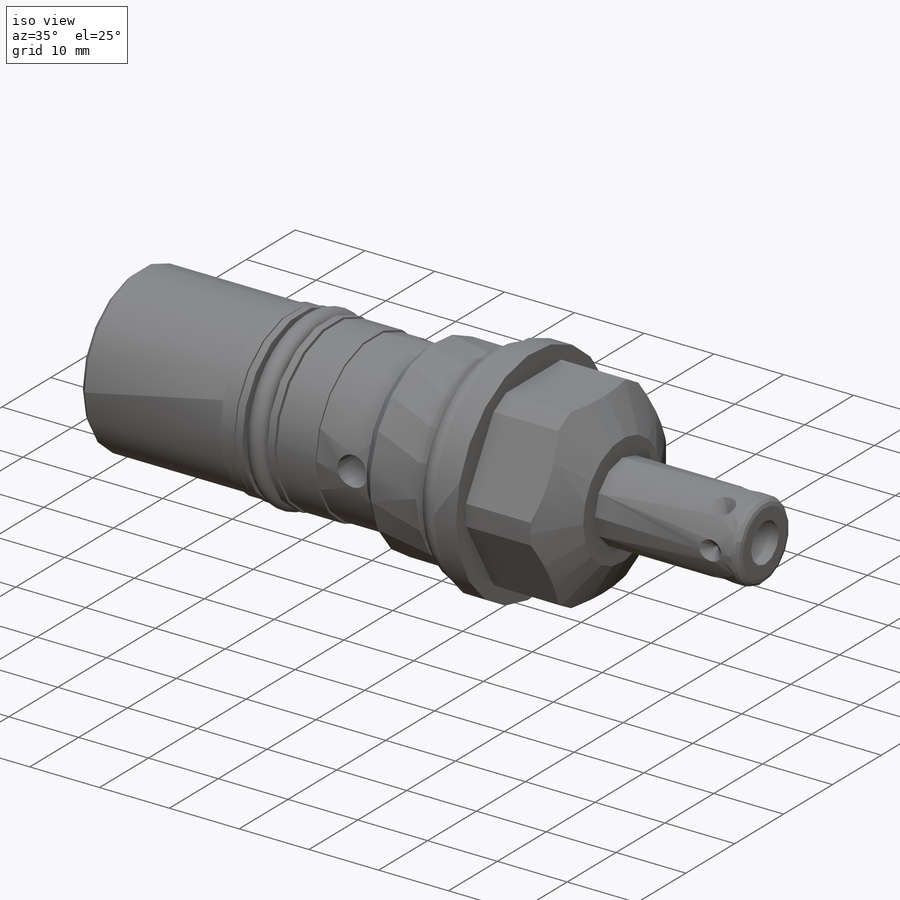
[diagram: iso view]
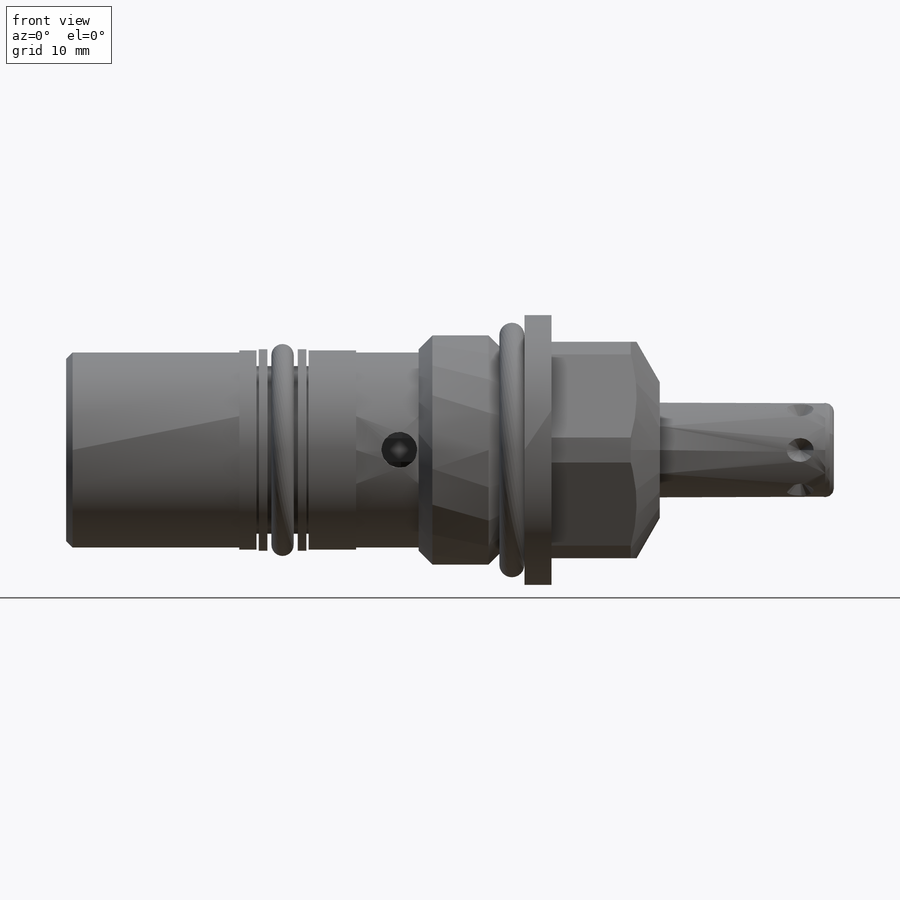
[diagram: front view]
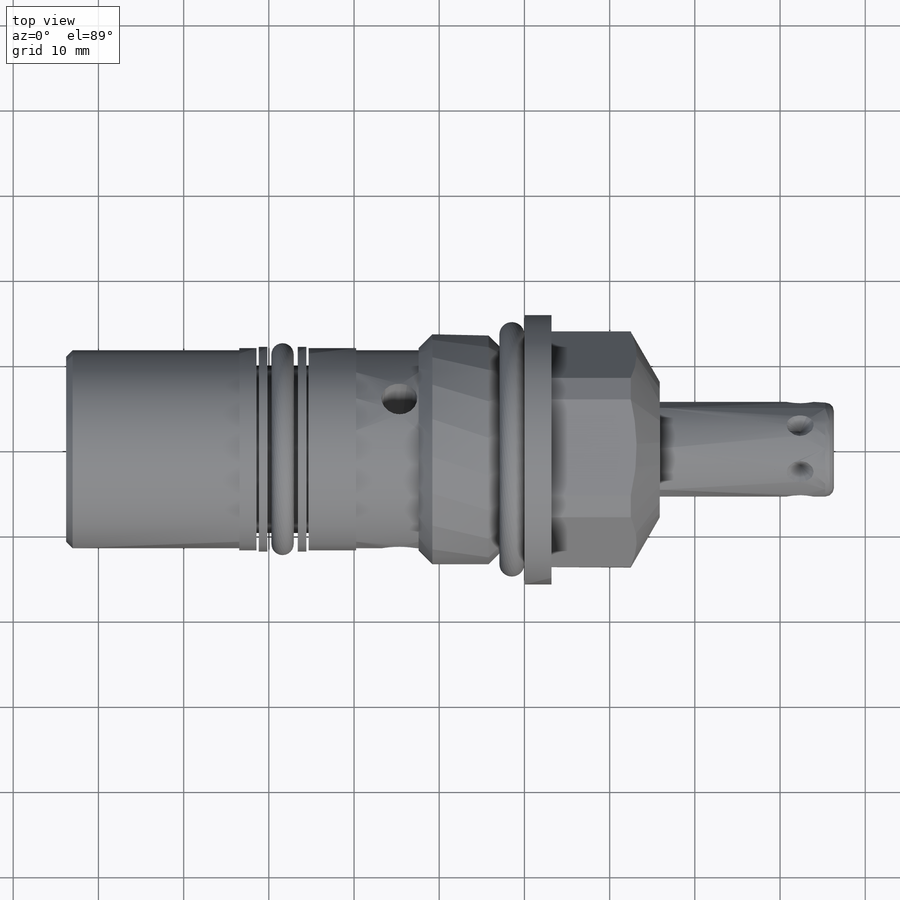
[diagram: top view]
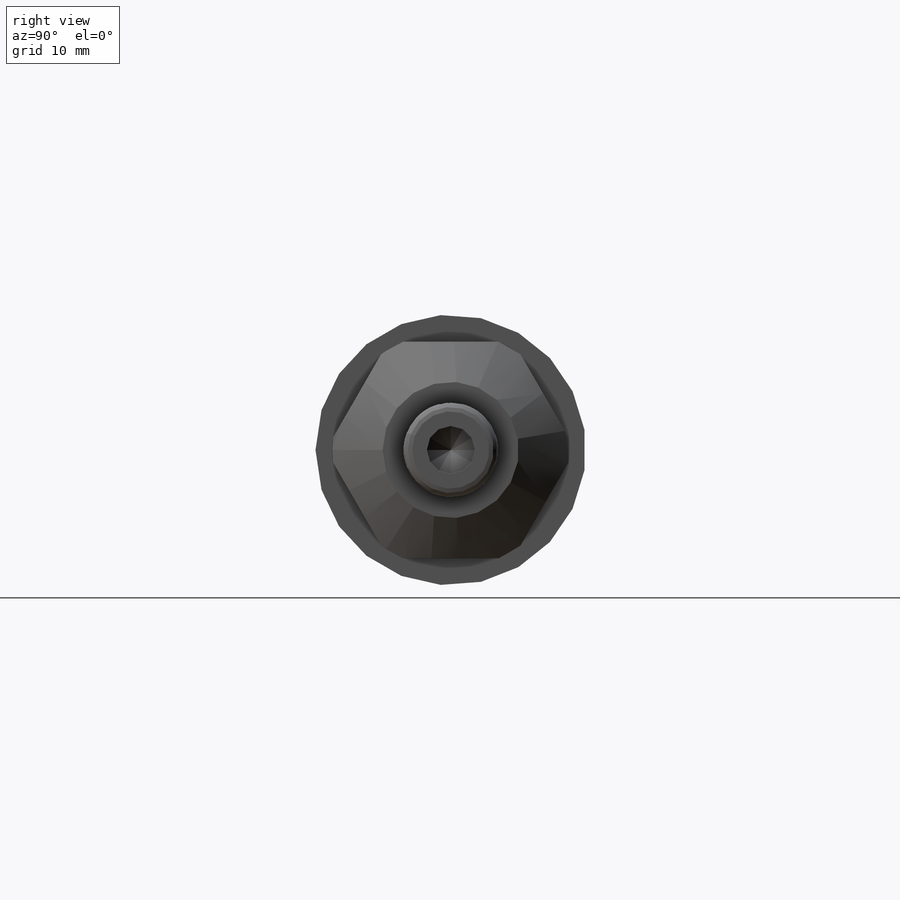
[diagram: right view]
SOLIDWORKS PART (.sldprt)
format: sldprt  version: not decoded by parser v0  size: 428,544 bytes
history: native  units: mm
features: sketch x13, revolve x6, cut_revolve x5, cut_extrude x2, pattern_circular x2, material x1, chamfer x1 (+13 scaffold rows collapsed)
feature tree (43):
  scaffold x13  (default folders/planes/origin — collapsed)
  material  "Alloy Steel"
  sketch  "Sketch1"  dims[c1.D1=31.75mm c1.D2=16.002mm c1.D3=3.175mm c1.D4=15.875mm c1.D5=27.7876mm c1.D6=~46.717802mm c2.D6=30.0deg c2.D7=53.7972mm c2.D8=2.7178mm c2.D9=24.003mm c2.D10=~47.278271mm c3.D10=45.0deg c3.D11=26.9875mm c3.D12=9.7028mm c3.D8=51.0794mm c3.D13=23.749mm c3.D14=23.241mm]
  revolve  "Revolve1"  Angle=360deg
  sketch  "Sketch2"  dims[D1=25.4mm]
  cut_extrude  "Cut-Extrude1"  [1 undecoded]
  sketch  "Sketch3"  dims[D1=1.016mm D2=36.322mm D3=11.1125mm]
  revolve  "Revolve2"  Angle=360deg
  sketch  "Sketch4"  dims[c1.D1=3.9624mm c1.D2=~2.455301mm c2.D2=45.0deg c2.D3=3.175mm]
  cut_revolve  "Cut-Revolve1"  Angle=360deg
  pattern_circular  "CirPattern1"  Count=6 Angle=360deg
  sketch  "Sketch5"  dims[c1.D1=10.16mm c1.D2=~3.320186mm c2.D2=59.0deg c2.D3=5.6134mm]
  cut_revolve  "Cut-Revolve2"  Angle=360deg
  sketch  "Sketch6"  dims[D1=13.716mm D2=23.749mm D3=20.32mm]
  revolve  "Revolve3"  Angle=360deg
  sketch  "Sketch7"  dims[D1=1.6002mm]
  cut_extrude  "Cut-Extrude2"  Depth=0.762mm
  sketch  "Sketch8"  dims[D1=6.1087mm D2=22.352mm D3=19.6596mm]
  cut_revolve  "Cut-Revolve3"  Angle=360deg
  sketch  "Sketch9"  dims[D1=1.016mm D2=0.254mm D3=2.1844mm]
  revolve  "Revolve4"  Angle=360deg
  sketch  "Sketch10"  dims[D1=39.116mm D2=4.2164mm D3=~0.79375mm]
  cut_revolve  "Cut-Revolve4"  Angle=360deg
  pattern_circular  "CirPattern2"  Count=3 Angle=360deg
  chamfer  "Chamfer1"  Distance=0.762mm Angle=45deg
  sketch  "Sketch11"  dims[D1=~15.025741mm D2=26.9494mm]
  revolve  "Revolve5"  Angle=360deg
  sketch  "Sketch12"  dims[D1=2.6162mm]
  revolve  "Revolve7"  Angle=360deg
  sketch  "Sketch13"  dims[c1.D1=~2.659019mm c2.D1=12.0deg c2.D2=9.144mm c2.D3=~2.758071mm c3.D3=45.0deg c3.D4=2.0828mm c3.D5=6.9088mm c3.D6=11.7856mm]
  cut_revolve  "Cut-Revolve5"  Angle=360deg
decode coverage: 28 of 29 modeling features carry decoded parameters
note: ~ marks probable driven/reference dimensions
note: 1 parameter value undecoded
note: suppression state not decoded; provenance and decode notes live in map.json
